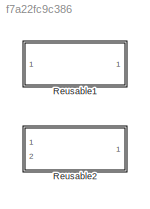
MODEL slx_f7a22fc9c386
KIND library
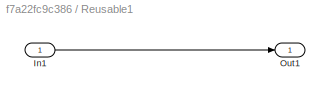
BLOCK [SubSystem] Reusable1
  Ports = [1, 1]
  RequestExecContextInheritance = off
BLOCK [Inport] Reusable1/In1
  IconDisplay = Port number
BLOCK [Outport] Reusable1/Out1
  IconDisplay = Port number
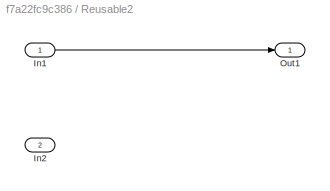
BLOCK [SubSystem] Reusable2
  Ports = [2, 1]
  RequestExecContextInheritance = off
BLOCK [Inport] Reusable2/In1
  IconDisplay = Port number
BLOCK [Inport] Reusable2/In2
  IconDisplay = Port number
  Port = 2
BLOCK [Outport] Reusable2/Out1
  IconDisplay = Port number
LINE Reusable1/In1:1 -> Reusable1/Out1:1
LINE Reusable2/In1:1 -> Reusable2/Out1:1
